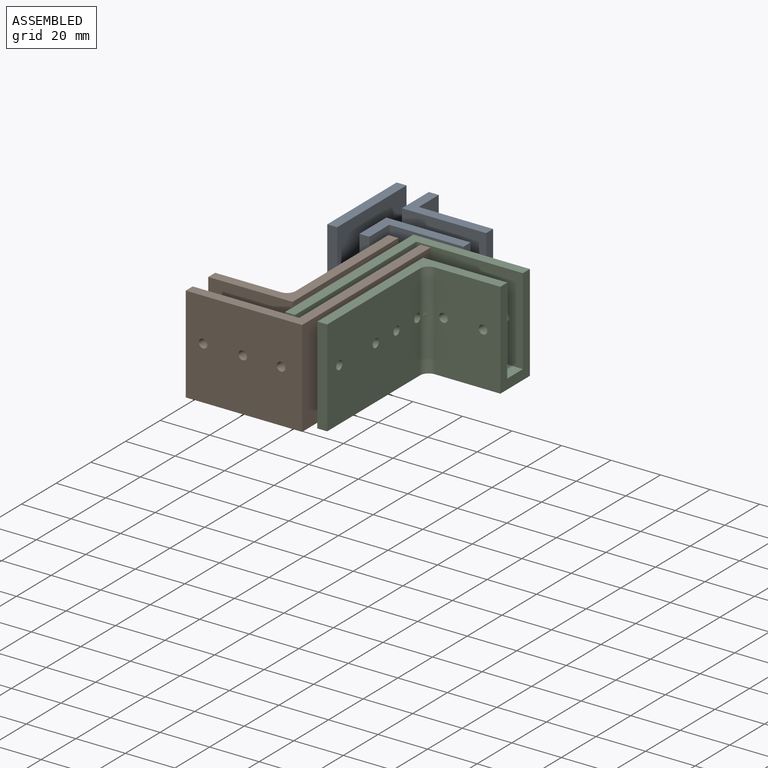
[diagram: assembled view]
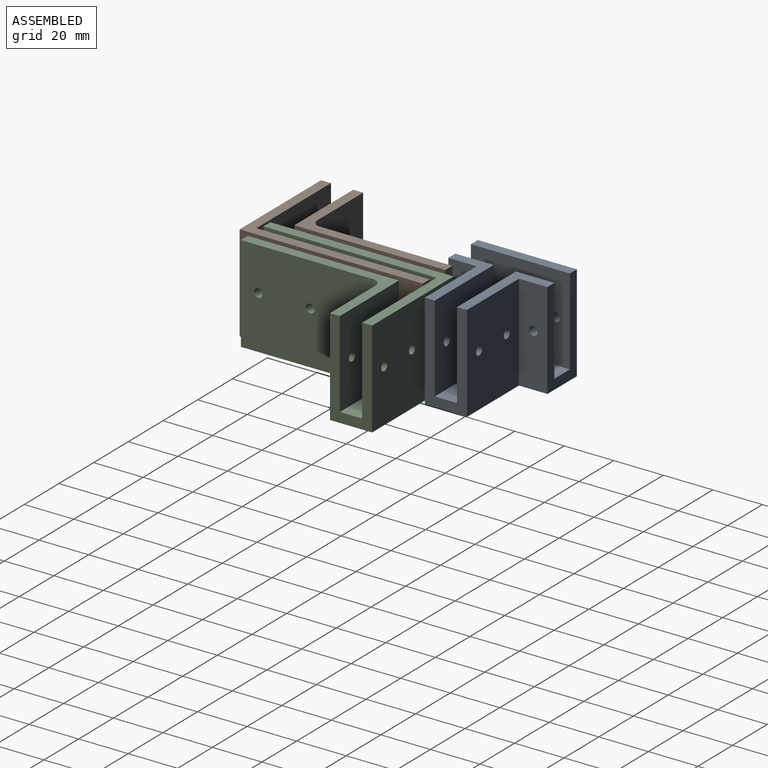
[diagram: assembled view, second angle]
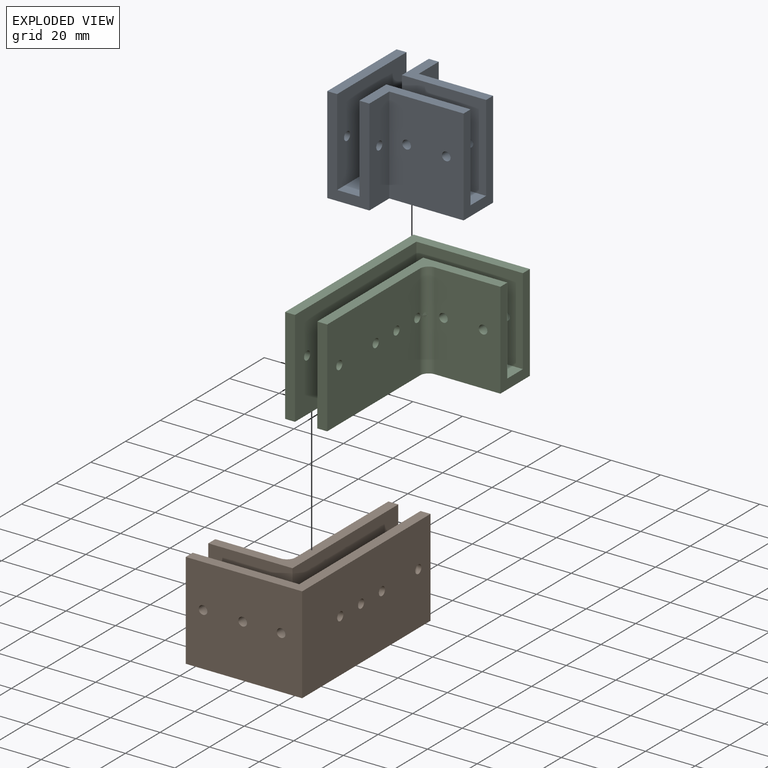
[diagram: exploded view]
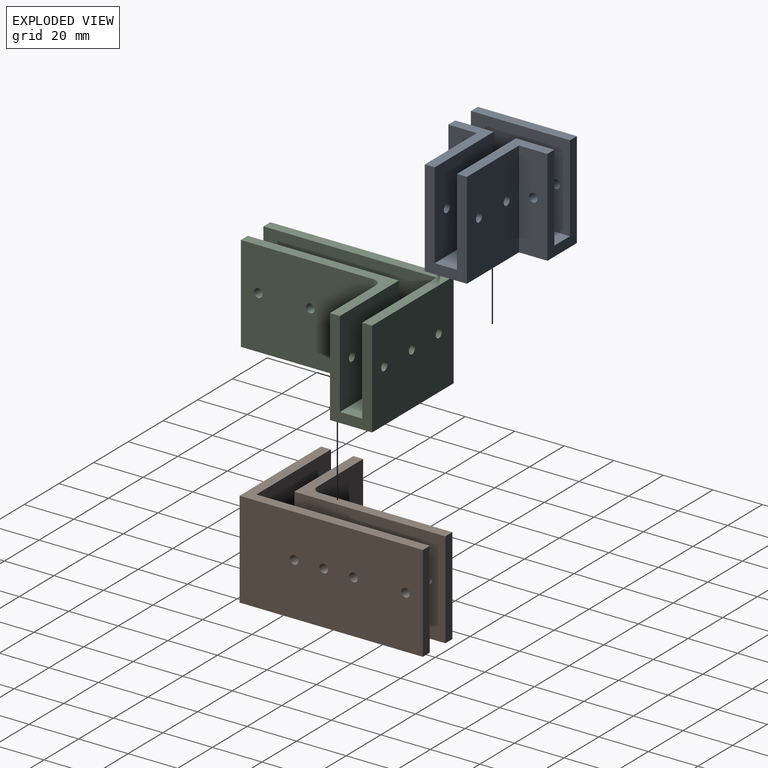
[diagram: exploded view, second angle]
ASSEMBLY  parts=3 mates=2
PART A: 26 faces, bbox 40x47x39 mm
  f0: plane 43x40mm, normal (0,0,1), area 666mm2, adj f1,f3,f6,f10,f12,f13,f15,f16
  f1: plane 39x17mm, normal (-1,0,0), area 348mm2, adj f0,f2,f8,f9,f10,f11,f12,f14
  f2: plane 40x39mm, normal (0,-1,0), area 1540.8mm2, adj f1,f3,f9,f11,f20,f21
  f3: plane 39x17mm, normal (1,0,0), area 348mm2, adj f0,f2,f4,f9,f10,f11,f16,f17
  f4: plane 39x11.5mm, normal (0,1,0), area 438.9mm2, adj f3,f5,f9,f17,f18
  f5: plane 39x30mm, normal (1,0,0), area 1150.8mm2, adj f4,f6,f9,f17,f22,f23
  f6: plane 39x17mm, normal (0,1,0), area 348mm2, adj f0,f5,f7,f9,f13,f14,f15,f17
  f7: plane 39x30mm, normal (-1,0,0), area 1150.8mm2, adj f6,f8,f9,f14,f24,f25
  f8: plane 39x11.5mm, normal (0,1,0), area 438.9mm2, adj f1,f7,f9,f14,f19
  f9: plane 47x40mm, normal (0,0,-1), area 1190mm2, adj f1,f2,f3,f4,f5,f6,f7,f8
  f10: plane 40x35mm, normal (0,1,0), area 1380.8mm2, adj f0,f1,f3,f11,f20,f21
  f11: plane 40x4mm, normal (0,0,1), area 160mm2, adj f1,f2,f3,f10
  f12: plane 35x15.5mm, normal (0,-1,0), area 532.9mm2, adj f0,f1,f13,f14,f19
  f13: plane 35x34mm, normal (1,0,0), area 1170.8mm2, adj f0,f6,f12,f14,f24,f25
  f14: plane 34x15.5mm, normal (0,0,1), area 182mm2, adj f1,f6,f7,f8,f12,f13
  f15: plane 35x34mm, normal (-1,0,0), area 1170.8mm2, adj f0,f6,f16,f17,f22,f23
  f16: plane 35x15.5mm, normal (0,-1,0), area 532.9mm2, adj f0,f3,f15,f17,f18
  f17: plane 34x15.5mm, normal (0,0,1), area 182mm2, adj f3,f4,f5,f6,f15,f16
  f18: cylinder r=1.75mm len=4mm, axis (0,1,0), area 44mm2, adj f4,f16
  f19: cylinder r=1.75mm len=4mm, axis (0,1,0), area 44mm2, adj f8,f12
  f20: cylinder r=1.75mm len=4mm, axis (0,1,0), area 44mm2, adj f2,f10
  f21: cylinder r=1.75mm len=4mm, axis (0,1,0), area 44mm2, adj f2,f10
  f22: cylinder r=1.75mm len=4mm, axis (1,0,0), area 44mm2, adj f5,f15
  f23: cylinder r=1.75mm len=4mm, axis (1,0,0), area 44mm2, adj f5,f15
  f24: cylinder r=1.75mm len=4mm, axis (1,0,0), area 44mm2, adj f7,f13
  f25: cylinder r=1.75mm len=4mm, axis (1,0,0), area 44mm2, adj f7,f13
PART B: 31 faces, bbox 74x47x39 mm
  f0: plane 34x9mm, normal (0,0,1), area 306mm2, adj f2,f3,f8,f12
  f1: plane 39x4mm, normal (-1,0,0), area 156mm2, adj f2,f10,f11,f13
  f2: plane 70x39mm, normal (0,1,0), area 2376.5mm2, adj f0,f1,f3,f11,f12,f13,f15,f16
  f3: plane 43x39mm, normal (-1,0,0), area 1512.1mm2, adj f0,f2,f4,f8,f11,f14,f25,f26
  f4: plane 70x39mm, normal (0,-1,0), area 2691.5mm2, adj f3,f5,f11,f14,f19,f20,f21,f22
  f5: plane 39x4mm, normal (-1,0,0), area 156mm2, adj f4,f6,f11,f14
  f6: plane 74x39mm, normal (0,1,0), area 2847.5mm2, adj f5,f7,f11,f14,f19,f20,f21,f22
  f7: plane 47x39mm, normal (1,0,0), area 1804.1mm2, adj f6,f8,f11,f14,f25,f26,f27
  f8: plane 39x17mm, normal (0,-1,0), area 348mm2, adj f0,f3,f7,f9,f11,f12,f13,f14
  f9: plane 39x26.51mm, normal (-1,0,0), area 1014.3mm2, adj f8,f11,f13,f23,f24,f28,f29,f30
  f10: plane 53.5x39mm, normal (0,-1,0), area 2048.3mm2, adj f1,f11,f13,f15,f16,f17,f18,f28
  f11: plane 74x47mm, normal (0,0,-1), area 1140.6mm2, adj f1,f2,f3,f4,f5,f6,f7,f8
  f12: plane 35x34mm, normal (1,0,0), area 1170.8mm2, adj f0,f2,f8,f13,f23,f24
  f13: plane 61x34mm, normal (0,0,1), area 366.6mm2, adj f1,f2,f8,f9,f10,f12,f30
  f14: plane 74x47mm, normal (0,0,1), area 468mm2, adj f3,f4,f5,f6,f7,f8
  f15: cylinder r=1.75mm len=4mm, axis (0,1,0), area 44mm2, adj f2,f10,f29
  f16: cylinder r=1.75mm len=4mm, axis (0,1,0), area 44mm2, adj f2,f10
  f17: cylinder r=1.75mm len=4mm, axis (0,1,0), area 44mm2, adj f2,f10
  f18: cylinder r=1.75mm len=4mm, axis (0,1,0), area 44mm2, adj f2,f10
  f19: cylinder r=1.75mm len=4mm, axis (0,1,0), area 44mm2, adj f4,f6
  f20: cylinder r=1.75mm len=4mm, axis (0,1,0), area 44mm2, adj f4,f6
  f21: cylinder r=1.75mm len=4mm, axis (0,1,0), area 44mm2, adj f4,f6
  f22: cylinder r=1.75mm len=4mm, axis (0,1,0), area 44mm2, adj f4,f6
  f23: cylinder r=1.75mm len=4mm, axis (-1,0,0), area 44mm2, adj f9,f12
  f24: cylinder r=1.75mm len=4mm, axis (-1,0,0), area 44mm2, adj f9,f12
  f25: cylinder r=1.75mm len=4mm, axis (-1,0,0), area 44mm2, adj f3,f7
  f26: cylinder r=1.75mm len=4mm, axis (-1,0,0), area 44mm2, adj f3,f7
  f27: cylinder r=1.75mm len=4mm, axis (-1,0,0), area 44mm2, adj f3,f7
  f28: cylinder r=3.5mm len=20.6mm, axis (0,0,1), area 113.2mm2, adj f9,f10,f11,f29
  f29: bspline ~3.5x3.5mm, area 9.6mm2, adj f9,f15,f28,f30
  f30: cylinder r=3.5mm len=16.6mm, axis (0,0,1), area 91.3mm2, adj f9,f10,f13,f29
PART C: same geometry as B
PLACE A rot(axis=(0,0,-1),90deg) t=(-12.57,74.37,-19.5)mm
PLACE B rot(axis=(0,0,-1),90deg) t=(67.33,-6.45,-19.5)mm
PLACE C rot(axis=(0,0,1),90deg) t=(-26.12,55.65,-19.5)mm
MATE planar B.f11 <-> C.f11  axis (0,0,-1) through (-21.17,-6.45,-19.5)mm
MATE planar C.f11 <-> A.f9  axis (0,0,-1) through (34.41,41.04,-19.5)mm
